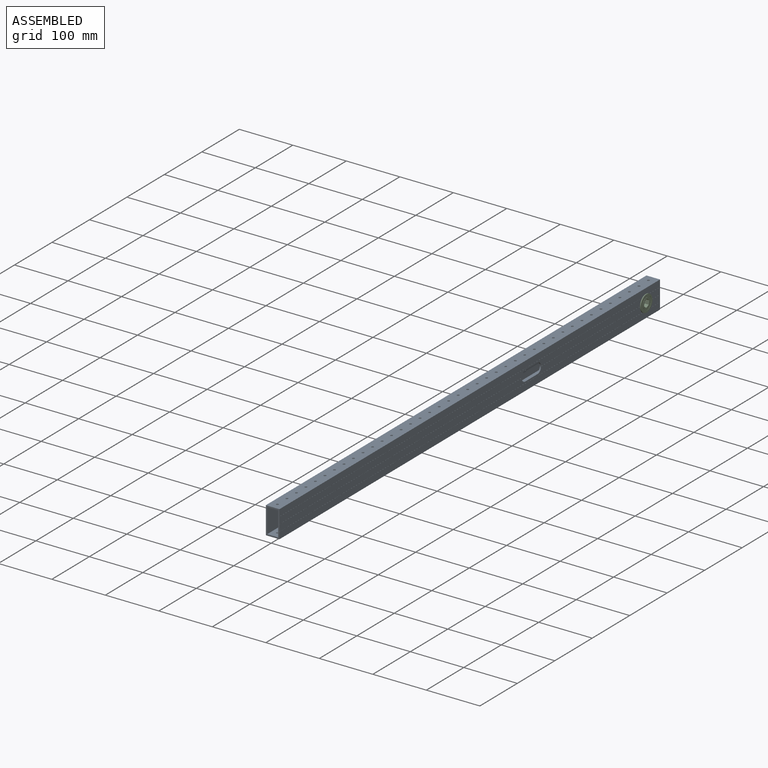
[diagram: assembled view]
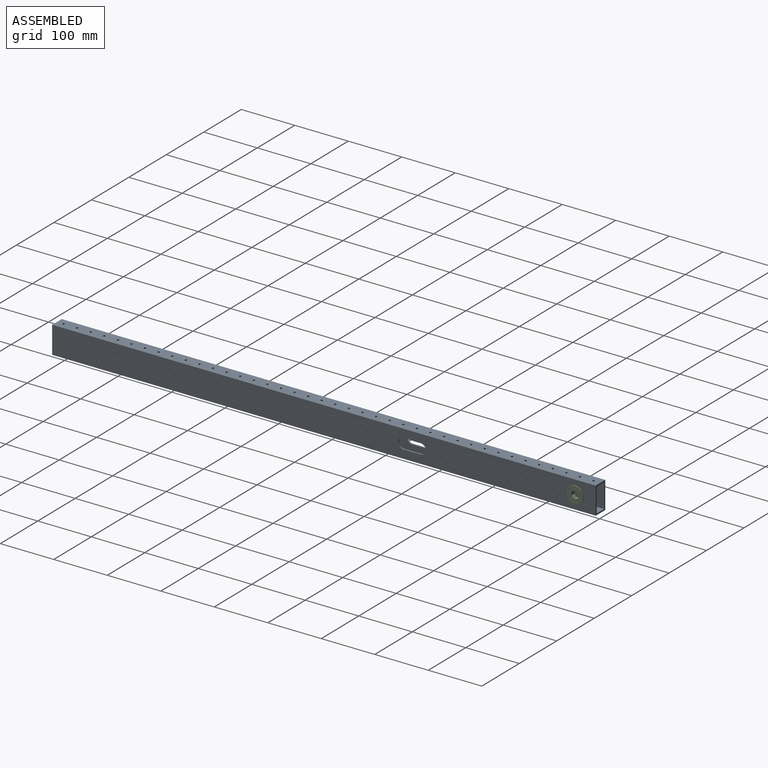
[diagram: assembled view, second angle]
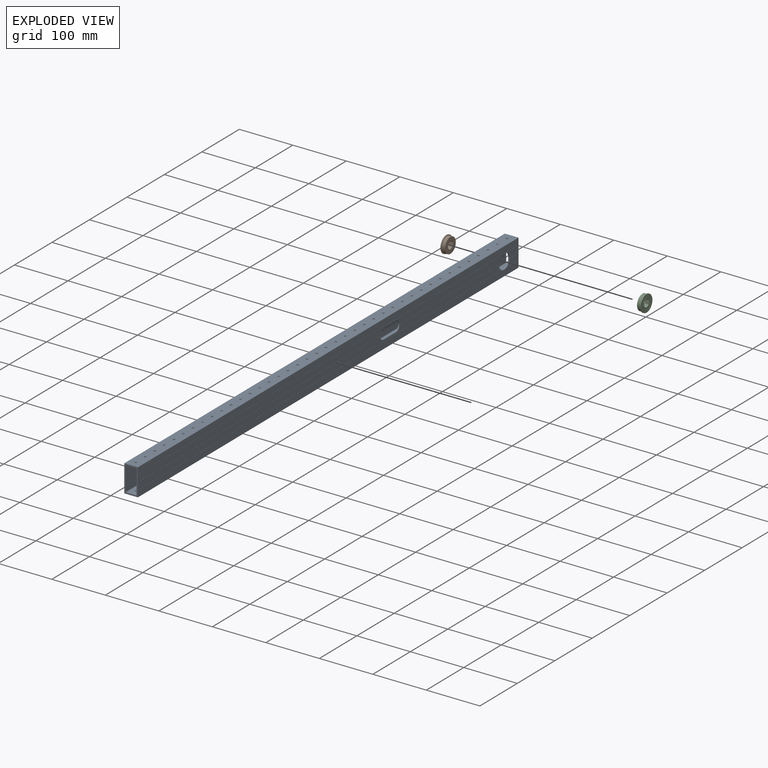
[diagram: exploded view]
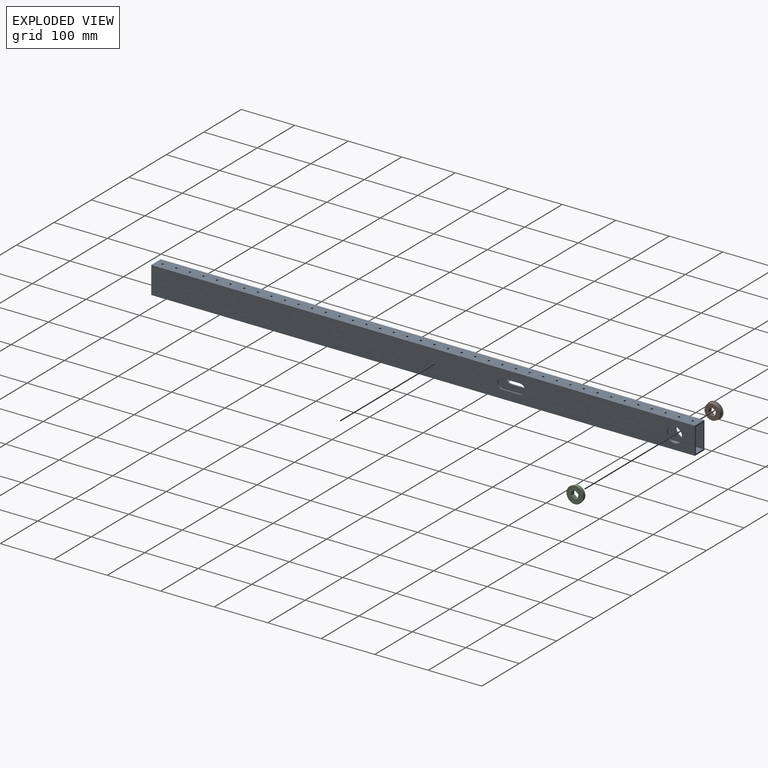
[diagram: exploded view, second angle]
ASSEMBLY  parts=3 mates=2
PART A: 304 faces, bbox 25.4x1016x50.8 mm
  f0: plane 971.21x12.55mm, normal (1,0,0), area 11668.6mm2, adj f2,f13,f15,f294,f295,f301,f302,f303
  f1: plane 971.21x12.55mm, normal (1,0,0), area 11668.6mm2, adj f3,f14,f16,f294,f295,f300,f302,f303
  f2: plane 646.76x0.08mm, normal (0.71,0,-0.71), area 69.7mm2, adj f0,f3,f295,f302
  f3: plane 646.76x0.08mm, normal (0.71,0,0.71), area 69.7mm2, adj f1,f2,f295,f302
  f4: plane 646.76x0.08mm, normal (-0.71,0,-0.71), area 69.7mm2, adj f5,f6,f295,f296
  f5: plane 646.76x0.08mm, normal (-0.71,0,0.71), area 69.7mm2, adj f4,f7,f295,f296
  f6: plane 971.21x12.55mm, normal (-1,0,0), area 11668.6mm2, adj f4,f17,f19,f293,f295,f296,f297,f298
  f7: plane 971.21x12.55mm, normal (-1,0,0), area 11668.6mm2, adj f5,f18,f34,f293,f295,f296,f297,f299
  f8: plane 1016x12.62mm, normal (-1,0,0), area 12812.8mm2, adj f24,f35,f44,f129,f293,f295
  f9: plane 1016x12.62mm, normal (1,0,0), area 12812.8mm2, adj f12,f23,f129,f210,f294,f295
  f10: plane 1016x12.62mm, normal (1,0,0), area 12812.8mm2, adj f21,f31,f40,f129,f294,f295
  f11: plane 1016x12.62mm, normal (-1,0,0), area 12812.8mm2, adj f20,f22,f129,f292,f293,f295
  f12: plane 971.51x0.08mm, normal (0.71,0,-0.71), area 104.7mm2, adj f9,f13,f294,f295
  f13: plane 971.35x0.08mm, normal (0.71,0,0.71), area 104.7mm2, adj f0,f12,f294,f295
  f14: plane 971.35x0.08mm, normal (0.71,0,-0.71), area 104.7mm2, adj f1,f31,f294,f295
  f15: plane 265.11x0.08mm, normal (0.71,0,-0.71), area 28.6mm2, adj f0,f16,f294,f303
  f16: plane 265.11x0.08mm, normal (0.71,0,0.71), area 28.6mm2, adj f1,f15,f294,f303
  f17: plane 265.11x0.08mm, normal (-0.71,0,-0.71), area 28.6mm2, adj f6,f34,f293,f297
  f18: plane 971.35x0.08mm, normal (-0.71,0,-0.71), area 104.7mm2, adj f7,f35,f293,f295
  f19: plane 971.35x0.08mm, normal (-0.71,0,0.71), area 104.7mm2, adj f6,f20,f293,f295
  f20: plane 971.51x0.08mm, normal (-0.71,0,-0.71), area 104.7mm2, adj f11,f19,f293,f295
  f21: plane 1016x12.62mm, normal (0,0,-1), area 12569.1mm2, adj f10,f33,f47,f48,f49,f50,f51,f52
  f22: plane 1016x12.62mm, normal (0,0,1), area 12569.1mm2, adj f11,f30,f86,f87,f88,f89,f90,f91
  f23: plane 1016x12.62mm, normal (0,0,1), area 12569.1mm2, adj f9,f29,f86,f87,f88,f89,f90,f91
  f24: plane 1016x12.62mm, normal (0,0,-1), area 12569.1mm2, adj f8,f32,f47,f48,f49,f50,f51,f52
  f25: plane 1016x45.72mm, normal (-1,0,0), area 44902.4mm2, adj f26,f28,f129,f294,f295,f300,f301,f302
  f26: plane 1016x20.32mm, normal (0,0,-1), area 20106.6mm2, adj f25,f27,f86,f87,f88,f89,f90,f91
  f27: plane 1016x45.72mm, normal (1,0,0), area 44902.4mm2, adj f26,f28,f129,f293,f295,f296,f297,f298
  f28: plane 1016x20.32mm, normal (0,0,1), area 20106.6mm2, adj f25,f27,f47,f48,f49,f50,f51,f52
  f29: plane 10.63x0.08mm, normal (-0.71,0,0.71), area 1.1mm2, adj f23,f30,f86,f295
  f30: plane 10.63x0.08mm, normal (0.71,0,0.71), area 1.1mm2, adj f22,f29,f86,f295
  f31: plane 971.51x0.08mm, normal (0.71,0,0.71), area 104.7mm2, adj f10,f14,f294,f295
  f32: plane 10.63x0.08mm, normal (0.71,0,-0.71), area 1.1mm2, adj f24,f33,f47,f295
  f33: plane 10.63x0.08mm, normal (-0.71,0,-0.71), area 1.1mm2, adj f21,f32,f47,f295
  f34: plane 265.11x0.08mm, normal (-0.71,0,0.71), area 28.6mm2, adj f7,f17,f293,f297
  f35: plane 971.51x0.08mm, normal (-0.71,0,0.71), area 104.7mm2, adj f8,f18,f293,f295
  f36: plane 31.41x12.55mm, normal (1,0,0), area 326.3mm2, adj f38,f41,f129,f294
  f37: plane 31.41x12.55mm, normal (1,0,0), area 326.3mm2, adj f39,f42,f129,f294
  f38: plane 31.55x0.08mm, normal (0.71,0,0.71), area 3.4mm2, adj f36,f129,f210,f294
  f39: plane 31.55x0.08mm, normal (0.71,0,-0.71), area 3.4mm2, adj f37,f40,f129,f294
  f40: plane 31.71x0.08mm, normal (0.71,0,0.71), area 3.4mm2, adj f10,f39,f129,f294
  f41: plane 23.81x0.08mm, normal (0.71,0,-0.71), area 2.6mm2, adj f36,f42,f129,f294
  f42: plane 23.81x0.08mm, normal (0.71,0,0.71), area 2.6mm2, adj f37,f41,f129,f294
  f43: plane 23.81x0.08mm, normal (-0.71,0,0.71), area 2.6mm2, adj f128,f129,f291,f293
  f44: plane 31.71x0.08mm, normal (-0.71,0,0.71), area 3.4mm2, adj f8,f45,f129,f293
  f45: plane 31.55x0.08mm, normal (-0.71,0,-0.71), area 3.4mm2, adj f44,f128,f129,f293
  f46: plane 31.55x0.08mm, normal (-0.71,0,0.71), area 3.4mm2, adj f127,f129,f292,f293
  f47: cylinder r=2.07mm len=4.14mm, axis (0,0,1), area 33mm2, adj f21,f24,f28,f32,f33,f211,f212
  f48: cylinder r=2.07mm len=4.14mm, axis (0,0,1), area 33mm2, adj f21,f24,f28,f211,f212,f213,f214
  f49: cylinder r=2.07mm len=4.14mm, axis (0,0,1), area 33mm2, adj f21,f24,f28,f213,f214,f215,f216
  f50: cylinder r=2.07mm len=4.14mm, axis (0,0,1), area 33mm2, adj f21,f24,f28,f215,f216,f217,f218
  f51: cylinder r=2.07mm len=4.14mm, axis (0,0,1), area 33mm2, adj f21,f24,f28,f217,f218,f219,f220
  f52: cylinder r=2.07mm len=4.14mm, axis (0,0,1), area 33mm2, adj f21,f24,f28,f219,f220,f221,f222
  f53: cylinder r=2.07mm len=4.14mm, axis (0,0,1), area 33mm2, adj f21,f24,f28,f221,f222,f223,f224
  f54: cylinder r=2.07mm len=4.14mm, axis (0,0,1), area 33mm2, adj f21,f24,f28,f223,f224,f225,f226
  f55: cylinder r=2.07mm len=4.14mm, axis (0,0,1), area 33mm2, adj f21,f24,f28,f225,f226,f227,f228
  f56: cylinder r=2.07mm len=4.14mm, axis (0,0,1), area 33mm2, adj f21,f24,f28,f227,f228,f229,f230
  f57: cylinder r=2.07mm len=4.14mm, axis (0,0,1), area 33mm2, adj f21,f24,f28,f229,f230,f231,f232
  f58: cylinder r=2.07mm len=4.14mm, axis (0,0,1), area 33mm2, adj f21,f24,f28,f231,f232,f233,f234
  f59: cylinder r=2.07mm len=4.14mm, axis (0,0,1), area 33mm2, adj f21,f24,f28,f233,f234,f235,f236
  f60: cylinder r=2.07mm len=4.14mm, axis (0,0,1), area 33mm2, adj f21,f24,f28,f235,f236,f237,f238
  f61: cylinder r=2.07mm len=4.14mm, axis (0,0,1), area 33mm2, adj f21,f24,f28,f237,f238,f239,f240
  f62: cylinder r=2.07mm len=4.14mm, axis (0,0,1), area 33mm2, adj f21,f24,f28,f239,f240,f241,f242
  f63: cylinder r=2.07mm len=4.14mm, axis (0,0,1), area 33mm2, adj f21,f24,f28,f241,f242,f243,f244
  f64: cylinder r=2.07mm len=4.14mm, axis (0,0,1), area 33mm2, adj f21,f24,f28,f243,f244,f245,f246
  f65: cylinder r=2.07mm len=4.14mm, axis (0,0,1), area 33mm2, adj f21,f24,f28,f245,f246,f247,f248
  f66: cylinder r=2.07mm len=4.14mm, axis (0,0,1), area 33mm2, adj f21,f24,f28,f247,f248,f249,f250
  f67: cylinder r=2.07mm len=4.14mm, axis (0,0,1), area 33mm2, adj f21,f24,f28,f249,f250,f251,f252
  f68: cylinder r=2.07mm len=4.14mm, axis (0,0,1), area 33mm2, adj f21,f24,f28,f251,f252,f253,f254
  f69: cylinder r=2.07mm len=4.14mm, axis (0,0,1), area 33mm2, adj f21,f24,f28,f253,f254,f255,f256
  f70: cylinder r=2.07mm len=4.14mm, axis (0,0,1), area 33mm2, adj f21,f24,f28,f255,f256,f257,f258
  f71: cylinder r=2.07mm len=4.14mm, axis (0,0,1), area 33mm2, adj f21,f24,f28,f257,f258,f259,f260
  f72: cylinder r=2.07mm len=4.14mm, axis (0,0,1), area 33mm2, adj f21,f24,f28,f259,f260,f261,f262
  f73: cylinder r=2.07mm len=4.14mm, axis (0,0,1), area 33mm2, adj f21,f24,f28,f261,f262,f263,f264
  f74: cylinder r=2.07mm len=4.14mm, axis (0,0,1), area 33mm2, adj f21,f24,f28,f263,f264,f265,f266
  f75: cylinder r=2.07mm len=4.14mm, axis (0,0,1), area 33mm2, adj f21,f24,f28,f265,f266,f267,f268
  f76: cylinder r=2.07mm len=4.14mm, axis (0,0,1), area 33mm2, adj f21,f24,f28,f267,f268,f269,f270
  f77: cylinder r=2.07mm len=4.14mm, axis (0,0,1), area 33mm2, adj f21,f24,f28,f269,f270,f271,f272
  f78: cylinder r=2.07mm len=4.14mm, axis (0,0,1), area 33mm2, adj f21,f24,f28,f271,f272,f273,f274
  f79: cylinder r=2.07mm len=4.14mm, axis (0,0,1), area 33mm2, adj f21,f24,f28,f273,f274,f275,f276
  f80: cylinder r=2.07mm len=4.14mm, axis (0,0,1), area 33mm2, adj f21,f24,f28,f275,f276,f277,f278
  f81: cylinder r=2.07mm len=4.14mm, axis (0,0,1), area 33mm2, adj f21,f24,f28,f277,f278,f279,f280
  f82: cylinder r=2.07mm len=4.14mm, axis (0,0,1), area 33mm2, adj f21,f24,f28,f279,f280,f281,f282
  f83: cylinder r=2.07mm len=4.14mm, axis (0,0,1), area 33mm2, adj f21,f24,f28,f281,f282,f283,f284
  f84: cylinder r=2.07mm len=4.14mm, axis (0,0,1), area 33mm2, adj f21,f24,f28,f283,f284,f285,f286
  f85: cylinder r=2.07mm len=4.14mm, axis (0,0,1), area 33mm2, adj f21,f24,f28,f285,f286,f287,f288
  f86: cylinder r=2.07mm len=4.14mm, axis (0,0,1), area 33mm2, adj f22,f23,f26,f29,f30,f130,f131
  f87: cylinder r=2.07mm len=4.14mm, axis (0,0,1), area 33mm2, adj f22,f23,f26,f130,f131,f132,f133
  f88: cylinder r=2.07mm len=4.14mm, axis (0,0,1), area 33mm2, adj f22,f23,f26,f132,f133,f134,f135
  f89: cylinder r=2.07mm len=4.14mm, axis (0,0,1), area 33mm2, adj f22,f23,f26,f134,f135,f136,f137
  f90: cylinder r=2.07mm len=4.14mm, axis (0,0,1), area 33mm2, adj f22,f23,f26,f136,f137,f138,f139
  f91: cylinder r=2.07mm len=4.14mm, axis (0,0,1), area 33mm2, adj f22,f23,f26,f138,f139,f140,f141
  f92: cylinder r=2.07mm len=4.14mm, axis (0,0,1), area 33mm2, adj f22,f23,f26,f140,f141,f142,f143
  f93: cylinder r=2.07mm len=4.14mm, axis (0,0,1), area 33mm2, adj f22,f23,f26,f142,f143,f144,f145
  f94: cylinder r=2.07mm len=4.14mm, axis (0,0,1), area 33mm2, adj f22,f23,f26,f144,f145,f146,f147
  f95: cylinder r=2.07mm len=4.14mm, axis (0,0,1), area 33mm2, adj f22,f23,f26,f146,f147,f148,f149
  f96: cylinder r=2.07mm len=4.14mm, axis (0,0,1), area 33mm2, adj f22,f23,f26,f148,f149,f150,f151
  f97: cylinder r=2.07mm len=4.14mm, axis (0,0,1), area 33mm2, adj f22,f23,f26,f150,f151,f152,f153
  f98: cylinder r=2.07mm len=4.14mm, axis (0,0,1), area 33mm2, adj f22,f23,f26,f152,f153,f154,f155
  f99: cylinder r=2.07mm len=4.14mm, axis (0,0,1), area 33mm2, adj f22,f23,f26,f154,f155,f156,f157
  f100: cylinder r=2.07mm len=4.14mm, axis (0,0,1), area 33mm2, adj f22,f23,f26,f156,f157,f158,f159
  f101: cylinder r=2.07mm len=4.14mm, axis (0,0,1), area 33mm2, adj f22,f23,f26,f158,f159,f160,f161
  f102: cylinder r=2.07mm len=4.14mm, axis (0,0,1), area 33mm2, adj f22,f23,f26,f160,f161,f162,f163
  f103: cylinder r=2.07mm len=4.14mm, axis (0,0,1), area 33mm2, adj f22,f23,f26,f162,f163,f164,f165
  f104: cylinder r=2.07mm len=4.14mm, axis (0,0,1), area 33mm2, adj f22,f23,f26,f164,f165,f166,f167
  f105: cylinder r=2.07mm len=4.14mm, axis (0,0,1), area 33mm2, adj f22,f23,f26,f166,f167,f168,f169
  f106: cylinder r=2.07mm len=4.14mm, axis (0,0,1), area 33mm2, adj f22,f23,f26,f168,f169,f170,f171
  f107: cylinder r=2.07mm len=4.14mm, axis (0,0,1), area 33mm2, adj f22,f23,f26,f170,f171,f172,f173
  f108: cylinder r=2.07mm len=4.14mm, axis (0,0,1), area 33mm2, adj f22,f23,f26,f172,f173,f174,f175
  f109: cylinder r=2.07mm len=4.14mm, axis (0,0,1), area 33mm2, adj f22,f23,f26,f174,f175,f176,f177
  f110: cylinder r=2.07mm len=4.14mm, axis (0,0,1), area 33mm2, adj f22,f23,f26,f176,f177,f178,f179
  f111: cylinder r=2.07mm len=4.14mm, axis (0,0,1), area 33mm2, adj f22,f23,f26,f178,f179,f180,f181
  f112: cylinder r=2.07mm len=4.14mm, axis (0,0,1), area 33mm2, adj f22,f23,f26,f180,f181,f182,f183
  f113: cylinder r=2.07mm len=4.14mm, axis (0,0,1), area 33mm2, adj f22,f23,f26,f182,f183,f184,f185
  f114: cylinder r=2.07mm len=4.14mm, axis (0,0,1), area 33mm2, adj f22,f23,f26,f184,f185,f186,f187
  f115: cylinder r=2.07mm len=4.14mm, axis (0,0,1), area 33mm2, adj f22,f23,f26,f186,f187,f188,f189
  f116: cylinder r=2.07mm len=4.14mm, axis (0,0,1), area 33mm2, adj f22,f23,f26,f188,f189,f190,f191
  f117: cylinder r=2.07mm len=4.14mm, axis (0,0,1), area 33mm2, adj f22,f23,f26,f190,f191,f192,f193
  f118: cylinder r=2.07mm len=4.14mm, axis (0,0,1), area 33mm2, adj f22,f23,f26,f192,f193,f194,f195
  f119: cylinder r=2.07mm len=4.14mm, axis (0,0,1), area 33mm2, adj f22,f23,f26,f194,f195,f196,f197
  f120: cylinder r=2.07mm len=4.14mm, axis (0,0,1), area 33mm2, adj f22,f23,f26,f196,f197,f198,f199
  f121: cylinder r=2.07mm len=4.14mm, axis (0,0,1), area 33mm2, adj f22,f23,f26,f198,f199,f200,f201
  f122: cylinder r=2.07mm len=4.14mm, axis (0,0,1), area 33mm2, adj f22,f23,f26,f200,f201,f202,f203
  f123: cylinder r=2.07mm len=4.14mm, axis (0,0,1), area 33mm2, adj f22,f23,f26,f202,f203,f204,f205
  f124: cylinder r=2.07mm len=4.14mm, axis (0,0,1), area 33mm2, adj f22,f23,f26,f204,f205,f206,f207
  f125: cylinder r=2.07mm len=4.14mm, axis (0,0,1), area 33mm2, adj f22,f23,f26,f206,f207,f208,f209
  f126: cylinder r=2.07mm len=4.14mm, axis (0,0,1), area 33mm2, adj f21,f24,f28,f287,f288,f289,f290
  f127: plane 31.41x12.55mm, normal (-1,0,0), area 326.3mm2, adj f46,f129,f291,f293
  f128: plane 31.41x12.55mm, normal (-1,0,0), area 326.3mm2, adj f43,f45,f129,f293
  f129: plane 50.8x25.4mm, normal (0,1,0), area 361.2mm2, adj f8,f9,f10,f11,f21,f22,f23,f24
  f130: plane 21.26x0.08mm, normal (-0.71,0,0.71), area 2.3mm2, adj f23,f86,f87,f131
  f131: plane 21.26x0.08mm, normal (0.71,0,0.71), area 2.3mm2, adj f22,f86,f87,f130
  f132: plane 21.26x0.08mm, normal (-0.71,0,0.71), area 2.3mm2, adj f23,f87,f88,f133
  f133: plane 21.26x0.08mm, normal (0.71,0,0.71), area 2.3mm2, adj f22,f87,f88,f132
  f134: plane 21.26x0.08mm, normal (-0.71,0,0.71), area 2.3mm2, adj f23,f88,f89,f135
  f135: plane 21.26x0.08mm, normal (0.71,0,0.71), area 2.3mm2, adj f22,f88,f89,f134
  f136: plane 21.26x0.08mm, normal (-0.71,0,0.71), area 2.3mm2, adj f23,f89,f90,f137
  f137: plane 21.26x0.08mm, normal (0.71,0,0.71), area 2.3mm2, adj f22,f89,f90,f136
  f138: plane 21.26x0.08mm, normal (-0.71,0,0.71), area 2.3mm2, adj f23,f90,f91,f139
  f139: plane 21.26x0.08mm, normal (0.71,0,0.71), area 2.3mm2, adj f22,f90,f91,f138
  f140: plane 21.26x0.08mm, normal (-0.71,0,0.71), area 2.3mm2, adj f23,f91,f92,f141
  f141: plane 21.26x0.08mm, normal (0.71,0,0.71), area 2.3mm2, adj f22,f91,f92,f140
  f142: plane 21.26x0.08mm, normal (-0.71,0,0.71), area 2.3mm2, adj f23,f92,f93,f143
  f143: plane 21.26x0.08mm, normal (0.71,0,0.71), area 2.3mm2, adj f22,f92,f93,f142
  f144: plane 21.26x0.08mm, normal (-0.71,0,0.71), area 2.3mm2, adj f23,f93,f94,f145
  f145: plane 21.26x0.08mm, normal (0.71,0,0.71), area 2.3mm2, adj f22,f93,f94,f144
  f146: plane 21.26x0.08mm, normal (-0.71,0,0.71), area 2.3mm2, adj f23,f94,f95,f147
  f147: plane 21.26x0.08mm, normal (0.71,0,0.71), area 2.3mm2, adj f22,f94,f95,f146
  f148: plane 21.26x0.08mm, normal (-0.71,0,0.71), area 2.3mm2, adj f23,f95,f96,f149
  f149: plane 21.26x0.08mm, normal (0.71,0,0.71), area 2.3mm2, adj f22,f95,f96,f148
  f150: plane 21.26x0.08mm, normal (-0.71,0,0.71), area 2.3mm2, adj f23,f96,f97,f151
  f151: plane 21.26x0.08mm, normal (0.71,0,0.71), area 2.3mm2, adj f22,f96,f97,f150
  f152: plane 21.26x0.08mm, normal (-0.71,0,0.71), area 2.3mm2, adj f23,f97,f98,f153
  f153: plane 21.26x0.08mm, normal (0.71,0,0.71), area 2.3mm2, adj f22,f97,f98,f152
  f154: plane 21.26x0.08mm, normal (-0.71,0,0.71), area 2.3mm2, adj f23,f98,f99,f155
  f155: plane 21.26x0.08mm, normal (0.71,0,0.71), area 2.3mm2, adj f22,f98,f99,f154
  f156: plane 21.26x0.08mm, normal (-0.71,0,0.71), area 2.3mm2, adj f23,f99,f100,f157
  f157: plane 21.26x0.08mm, normal (0.71,0,0.71), area 2.3mm2, adj f22,f99,f100,f156
  f158: plane 21.26x0.08mm, normal (-0.71,0,0.71), area 2.3mm2, adj f23,f100,f101,f159
  f159: plane 21.26x0.08mm, normal (0.71,0,0.71), area 2.3mm2, adj f22,f100,f101,f158
  f160: plane 21.26x0.08mm, normal (-0.71,0,0.71), area 2.3mm2, adj f23,f101,f102,f161
  f161: plane 21.26x0.08mm, normal (0.71,0,0.71), area 2.3mm2, adj f22,f101,f102,f160
  f162: plane 21.26x0.08mm, normal (-0.71,0,0.71), area 2.3mm2, adj f23,f102,f103,f163
  f163: plane 21.26x0.08mm, normal (0.71,0,0.71), area 2.3mm2, adj f22,f102,f103,f162
  f164: plane 21.26x0.08mm, normal (-0.71,0,0.71), area 2.3mm2, adj f23,f103,f104,f165
  f165: plane 21.26x0.08mm, normal (0.71,0,0.71), area 2.3mm2, adj f22,f103,f104,f164
  f166: plane 21.26x0.08mm, normal (-0.71,0,0.71), area 2.3mm2, adj f23,f104,f105,f167
  f167: plane 21.26x0.08mm, normal (0.71,0,0.71), area 2.3mm2, adj f22,f104,f105,f166
  f168: plane 21.26x0.08mm, normal (-0.71,0,0.71), area 2.3mm2, adj f23,f105,f106,f169
  f169: plane 21.26x0.08mm, normal (0.71,0,0.71), area 2.3mm2, adj f22,f105,f106,f168
  f170: plane 21.26x0.08mm, normal (-0.71,0,0.71), area 2.3mm2, adj f23,f106,f107,f171
  f171: plane 21.26x0.08mm, normal (0.71,0,0.71), area 2.3mm2, adj f22,f106,f107,f170
  f172: plane 21.26x0.08mm, normal (-0.71,0,0.71), area 2.3mm2, adj f23,f107,f108,f173
  f173: plane 21.26x0.08mm, normal (0.71,0,0.71), area 2.3mm2, adj f22,f107,f108,f172
  f174: plane 21.26x0.08mm, normal (-0.71,0,0.71), area 2.3mm2, adj f23,f108,f109,f175
  f175: plane 21.26x0.08mm, normal (0.71,0,0.71), area 2.3mm2, adj f22,f108,f109,f174
  f176: plane 21.26x0.08mm, normal (-0.71,0,0.71), area 2.3mm2, adj f23,f109,f110,f177
  f177: plane 21.26x0.08mm, normal (0.71,0,0.71), area 2.3mm2, adj f22,f109,f110,f176
  f178: plane 21.26x0.08mm, normal (-0.71,0,0.71), area 2.3mm2, adj f23,f110,f111,f179
  f179: plane 21.26x0.08mm, normal (0.71,0,0.71), area 2.3mm2, adj f22,f110,f111,f178
  f180: plane 21.26x0.08mm, normal (-0.71,0,0.71), area 2.3mm2, adj f23,f111,f112,f181
  f181: plane 21.26x0.08mm, normal (0.71,0,0.71), area 2.3mm2, adj f22,f111,f112,f180
  f182: plane 21.26x0.08mm, normal (-0.71,0,0.71), area 2.3mm2, adj f23,f112,f113,f183
  f183: plane 21.26x0.08mm, normal (0.71,0,0.71), area 2.3mm2, adj f22,f112,f113,f182
  f184: plane 21.26x0.08mm, normal (-0.71,0,0.71), area 2.3mm2, adj f23,f113,f114,f185
  f185: plane 21.26x0.08mm, normal (0.71,0,0.71), area 2.3mm2, adj f22,f113,f114,f184
  f186: plane 21.26x0.08mm, normal (-0.71,0,0.71), area 2.3mm2, adj f23,f114,f115,f187
  f187: plane 21.26x0.08mm, normal (0.71,0,0.71), area 2.3mm2, adj f22,f114,f115,f186
  f188: plane 21.26x0.08mm, normal (-0.71,0,0.71), area 2.3mm2, adj f23,f115,f116,f189
  f189: plane 21.26x0.08mm, normal (0.71,0,0.71), area 2.3mm2, adj f22,f115,f116,f188
  f190: plane 21.26x0.08mm, normal (-0.71,0,0.71), area 2.3mm2, adj f23,f116,f117,f191
  f191: plane 21.26x0.08mm, normal (0.71,0,0.71), area 2.3mm2, adj f22,f116,f117,f190
  f192: plane 21.26x0.08mm, normal (-0.71,0,0.71), area 2.3mm2, adj f23,f117,f118,f193
  f193: plane 21.26x0.08mm, normal (0.71,0,0.71), area 2.3mm2, adj f22,f117,f118,f192
  f194: plane 21.26x0.08mm, normal (-0.71,0,0.71), area 2.3mm2, adj f23,f118,f119,f195
  f195: plane 21.26x0.08mm, normal (0.71,0,0.71), area 2.3mm2, adj f22,f118,f119,f194
  f196: plane 21.26x0.08mm, normal (-0.71,0,0.71), area 2.3mm2, adj f23,f119,f120,f197
  f197: plane 21.26x0.08mm, normal (0.71,0,0.71), area 2.3mm2, adj f22,f119,f120,f196
  f198: plane 21.26x0.08mm, normal (-0.71,0,0.71), area 2.3mm2, adj f23,f120,f121,f199
  f199: plane 21.26x0.08mm, normal (0.71,0,0.71), area 2.3mm2, adj f22,f120,f121,f198
  f200: plane 21.26x0.08mm, normal (-0.71,0,0.71), area 2.3mm2, adj f23,f121,f122,f201
  f201: plane 21.26x0.08mm, normal (0.71,0,0.71), area 2.3mm2, adj f22,f121,f122,f200
  f202: plane 21.26x0.08mm, normal (-0.71,0,0.71), area 2.3mm2, adj f23,f122,f123,f203
  f203: plane 21.26x0.08mm, normal (0.71,0,0.71), area 2.3mm2, adj f22,f122,f123,f202
  f204: plane 21.26x0.08mm, normal (-0.71,0,0.71), area 2.3mm2, adj f23,f123,f124,f205
  f205: plane 21.26x0.08mm, normal (0.71,0,0.71), area 2.3mm2, adj f22,f123,f124,f204
  f206: plane 21.26x0.08mm, normal (-0.71,0,0.71), area 2.3mm2, adj f23,f124,f125,f207
  f207: plane 21.26x0.08mm, normal (0.71,0,0.71), area 2.3mm2, adj f22,f124,f125,f206
  f208: plane 10.63x0.08mm, normal (0.71,0,0.71), area 1.1mm2, adj f22,f125,f129,f209
  f209: plane 10.63x0.08mm, normal (-0.71,0,0.71), area 1.1mm2, adj f23,f125,f129,f208
  f210: plane 31.71x0.08mm, normal (0.71,0,-0.71), area 3.4mm2, adj f9,f38,f129,f294
  f211: plane 21.26x0.08mm, normal (0.71,0,-0.71), area 2.3mm2, adj f24,f47,f48,f212
  f212: plane 21.26x0.08mm, normal (-0.71,0,-0.71), area 2.3mm2, adj f21,f47,f48,f211
  f213: plane 21.26x0.08mm, normal (0.71,0,-0.71), area 2.3mm2, adj f24,f48,f49,f214
  f214: plane 21.26x0.08mm, normal (-0.71,0,-0.71), area 2.3mm2, adj f21,f48,f49,f213
  f215: plane 21.26x0.08mm, normal (0.71,0,-0.71), area 2.3mm2, adj f24,f49,f50,f216
  f216: plane 21.26x0.08mm, normal (-0.71,0,-0.71), area 2.3mm2, adj f21,f49,f50,f215
  f217: plane 21.26x0.08mm, normal (0.71,0,-0.71), area 2.3mm2, adj f24,f50,f51,f218
  f218: plane 21.26x0.08mm, normal (-0.71,0,-0.71), area 2.3mm2, adj f21,f50,f51,f217
  f219: plane 21.26x0.08mm, normal (0.71,0,-0.71), area 2.3mm2, adj f24,f51,f52,f220
  f220: plane 21.26x0.08mm, normal (-0.71,0,-0.71), area 2.3mm2, adj f21,f51,f52,f219
  f221: plane 21.26x0.08mm, normal (0.71,0,-0.71), area 2.3mm2, adj f24,f52,f53,f222
  f222: plane 21.26x0.08mm, normal (-0.71,0,-0.71), area 2.3mm2, adj f21,f52,f53,f221
  f223: plane 21.26x0.08mm, normal (0.71,0,-0.71), area 2.3mm2, adj f24,f53,f54,f224
  f224: plane 21.26x0.08mm, normal (-0.71,0,-0.71), area 2.3mm2, adj f21,f53,f54,f223
  f225: plane 21.26x0.08mm, normal (0.71,0,-0.71), area 2.3mm2, adj f24,f54,f55,f226
  f226: plane 21.26x0.08mm, normal (-0.71,0,-0.71), area 2.3mm2, adj f21,f54,f55,f225
  f227: plane 21.26x0.08mm, normal (0.71,0,-0.71), area 2.3mm2, adj f24,f55,f56,f228
  f228: plane 21.26x0.08mm, normal (-0.71,0,-0.71), area 2.3mm2, adj f21,f55,f56,f227
  f229: plane 21.26x0.08mm, normal (0.71,0,-0.71), area 2.3mm2, adj f24,f56,f57,f230
  f230: plane 21.26x0.08mm, normal (-0.71,0,-0.71), area 2.3mm2, adj f21,f56,f57,f229
  f231: plane 21.26x0.08mm, normal (0.71,0,-0.71), area 2.3mm2, adj f24,f57,f58,f232
  f232: plane 21.26x0.08mm, normal (-0.71,0,-0.71), area 2.3mm2, adj f21,f57,f58,f231
  f233: plane 21.26x0.08mm, normal (0.71,0,-0.71), area 2.3mm2, adj f24,f58,f59,f234
  f234: plane 21.26x0.08mm, normal (-0.71,0,-0.71), area 2.3mm2, adj f21,f58,f59,f233
  f235: plane 21.26x0.08mm, normal (0.71,0,-0.71), area 2.3mm2, adj f24,f59,f60,f236
  f236: plane 21.26x0.08mm, normal (-0.71,0,-0.71), area 2.3mm2, adj f21,f59,f60,f235
  f237: plane 21.26x0.08mm, normal (0.71,0,-0.71), area 2.3mm2, adj f24,f60,f61,f238
  f238: plane 21.26x0.08mm, normal (-0.71,0,-0.71), area 2.3mm2, adj f21,f60,f61,f237
  f239: plane 21.26x0.08mm, normal (0.71,0,-0.71), area 2.3mm2, adj f24,f61,f62,f240
  f240: plane 21.26x0.08mm, normal (-0.71,0,-0.71), area 2.3mm2, adj f21,f61,f62,f239
  f241: plane 21.26x0.08mm, normal (0.71,0,-0.71), area 2.3mm2, adj f24,f62,f63,f242
  f242: plane 21.26x0.08mm, normal (-0.71,0,-0.71), area 2.3mm2, adj f21,f62,f63,f241
  f243: plane 21.26x0.08mm, normal (0.71,0,-0.71), area 2.3mm2, adj f24,f63,f64,f244
  f244: plane 21.26x0.08mm, normal (-0.71,0,-0.71), area 2.3mm2, adj f21,f63,f64,f243
  f245: plane 21.26x0.08mm, normal (0.71,0,-0.71), area 2.3mm2, adj f24,f64,f65,f246
  f246: plane 21.26x0.08mm, normal (-0.71,0,-0.71), area 2.3mm2, adj f21,f64,f65,f245
  f247: plane 21.26x0.08mm, normal (0.71,0,-0.71), area 2.3mm2, adj f24,f65,f66,f248
  f248: plane 21.26x0.08mm, normal (-0.71,0,-0.71), area 2.3mm2, adj f21,f65,f66,f247
  f249: plane 21.26x0.08mm, normal (0.71,0,-0.71), area 2.3mm2, adj f24,f66,f67,f250
  f250: plane 21.26x0.08mm, normal (-0.71,0,-0.71), area 2.3mm2, adj f21,f66,f67,f249
  f251: plane 21.26x0.08mm, normal (0.71,0,-0.71), area 2.3mm2, adj f24,f67,f68,f252
  f252: plane 21.26x0.08mm, normal (-0.71,0,-0.71), area 2.3mm2, adj f21,f67,f68,f251
  f253: plane 21.26x0.08mm, normal (0.71,0,-0.71), area 2.3mm2, adj f24,f68,f69,f254
  f254: plane 21.26x0.08mm, normal (-0.71,0,-0.71), area 2.3mm2, adj f21,f68,f69,f253
  f255: plane 21.26x0.08mm, normal (0.71,0,-0.71), area 2.3mm2, adj f24,f69,f70,f256
  f256: plane 21.26x0.08mm, normal (-0.71,0,-0.71), area 2.3mm2, adj f21,f69,f70,f255
  f257: plane 21.26x0.08mm, normal (0.71,0,-0.71), area 2.3mm2, adj f24,f70,f71,f258
  f258: plane 21.26x0.08mm, normal (-0.71,0,-0.71), area 2.3mm2, adj f21,f70,f71,f257
  f259: plane 21.26x0.08mm, normal (0.71,0,-0.71), area 2.3mm2, adj f24,f71,f72,f260
  f260: plane 21.26x0.08mm, normal (-0.71,0,-0.71), area 2.3mm2, adj f21,f71,f72,f259
  f261: plane 21.26x0.08mm, normal (0.71,0,-0.71), area 2.3mm2, adj f24,f72,f73,f262
  f262: plane 21.26x0.08mm, normal (-0.71,0,-0.71), area 2.3mm2, adj f21,f72,f73,f261
  f263: plane 21.26x0.08mm, normal (0.71,0,-0.71), area 2.3mm2, adj f24,f73,f74,f264
  f264: plane 21.26x0.08mm, normal (-0.71,0,-0.71), area 2.3mm2, adj f21,f73,f74,f263
  f265: plane 21.26x0.08mm, normal (0.71,0,-0.71), area 2.3mm2, adj f24,f74,f75,f266
  f266: plane 21.26x0.08mm, normal (-0.71,0,-0.71), area 2.3mm2, adj f21,f74,f75,f265
  f267: plane 21.26x0.08mm, normal (0.71,0,-0.71), area 2.3mm2, adj f24,f75,f76,f268
  f268: plane 21.26x0.08mm, normal (-0.71,0,-0.71), area 2.3mm2, adj f21,f75,f76,f267
  f269: plane 21.26x0.08mm, normal (0.71,0,-0.71), area 2.3mm2, adj f24,f76,f77,f270
  f270: plane 21.26x0.08mm, normal (-0.71,0,-0.71), area 2.3mm2, adj f21,f76,f77,f269
  f271: plane 21.26x0.08mm, normal (0.71,0,-0.71), area 2.3mm2, adj f24,f77,f78,f272
  f272: plane 21.26x0.08mm, normal (-0.71,0,-0.71), area 2.3mm2, adj f21,f77,f78,f271
  f273: plane 21.26x0.08mm, normal (0.71,0,-0.71), area 2.3mm2, adj f24,f78,f79,f274
  f274: plane 21.26x0.08mm, normal (-0.71,0,-0.71), area 2.3mm2, adj f21,f78,f79,f273
  f275: plane 21.26x0.08mm, normal (0.71,0,-0.71), area 2.3mm2, adj f24,f79,f80,f276
  f276: plane 21.26x0.08mm, normal (-0.71,0,-0.71), area 2.3mm2, adj f21,f79,f80,f275
  f277: plane 21.26x0.08mm, normal (0.71,0,-0.71), area 2.3mm2, adj f24,f80,f81,f278
  f278: plane 21.26x0.08mm, normal (-0.71,0,-0.71), area 2.3mm2, adj f21,f80,f81,f277
  f279: plane 21.26x0.08mm, normal (0.71,0,-0.71), area 2.3mm2, adj f24,f81,f82,f280
  f280: plane 21.26x0.08mm, normal (-0.71,0,-0.71), area 2.3mm2, adj f21,f81,f82,f279
  f281: plane 21.26x0.08mm, normal (0.71,0,-0.71), area 2.3mm2, adj f24,f82,f83,f282
  f282: plane 21.26x0.08mm, normal (-0.71,0,-0.71), area 2.3mm2, adj f21,f82,f83,f281
  f283: plane 21.26x0.08mm, normal (0.71,0,-0.71), area 2.3mm2, adj f24,f83,f84,f284
  f284: plane 21.26x0.08mm, normal (-0.71,0,-0.71), area 2.3mm2, adj f21,f83,f84,f283
  f285: plane 21.26x0.08mm, normal (0.71,0,-0.71), area 2.3mm2, adj f24,f84,f85,f286
  f286: plane 21.26x0.08mm, normal (-0.71,0,-0.71), area 2.3mm2, adj f21,f84,f85,f285
  f287: plane 21.26x0.08mm, normal (0.71,0,-0.71), area 2.3mm2, adj f24,f85,f126,f288
  f288: plane 21.26x0.08mm, normal (-0.71,0,-0.71), area 2.3mm2, adj f21,f85,f126,f287
  f289: plane 10.63x0.08mm, normal (-0.71,0,-0.71), area 1.1mm2, adj f21,f126,f129,f290
  f290: plane 10.63x0.08mm, normal (0.71,0,-0.71), area 1.1mm2, adj f24,f126,f129,f289
  f291: plane 23.81x0.08mm, normal (-0.71,0,-0.71), area 2.6mm2, adj f43,f127,f129,f293
  f292: plane 31.71x0.08mm, normal (-0.71,0,-0.71), area 3.4mm2, adj f11,f46,f129,f293
  f293: cylinder r=14.29mm len=28.58mm, axis (1,0,0), area 228mm2, adj f6,f7,f8,f11,f17,f18,f19,f20
  f294: cylinder r=14.29mm len=28.58mm, axis (1,0,0), area 228mm2, adj f0,f1,f9,f10,f12,f13,f14,f15
  f295: plane 50.8x25.4mm, normal (0,-1,0), area 361.2mm2, adj f0,f1,f2,f3,f4,f5,f6,f7
  f296: cylinder r=9.53mm len=19.05mm, axis (1,0,0), area 76mm2, adj f4,f5,f6,f7,f27,f298,f299
  f297: cylinder r=9.53mm len=19.05mm, axis (1,0,0), area 76mm2, adj f6,f7,f17,f27,f34,f298,f299
  f298: plane 32.7x2.54mm, normal (0,0,-1), area 83mm2, adj f6,f27,f296,f297
  f299: plane 32.7x2.54mm, normal (0,0,1), area 83mm2, adj f7,f27,f296,f297
  f300: plane 32.7x2.54mm, normal (0,0,1), area 83mm2, adj f1,f25,f302,f303
  f301: plane 32.7x2.54mm, normal (0,0,-1), area 83mm2, adj f0,f25,f302,f303
  f302: cylinder r=9.53mm len=19.05mm, axis (1,0,0), area 76mm2, adj f0,f1,f2,f3,f25,f300,f301
  f303: cylinder r=9.53mm len=19.05mm, axis (1,0,0), area 76mm2, adj f0,f1,f15,f16,f25,f300,f301
PART B: 15 faces, bbox 31.1x31.1x7.9 mm
  f0: cylinder r=12.7mm len=25.4mm, axis (0,0,1), area 30.4mm2, adj f7,f8
  f1: cylinder r=15.56mm len=31.12mm, axis (0,0,1), area 155.2mm2, adj f6,f7
  f2: cylinder r=14.27mm len=28.55mm, axis (0,0,1), area 569.5mm2, adj f5,f6
  f3: cylinder r=9.53mm len=19.05mm, axis (0,0,1), area 22.8mm2, adj f4,f8
  f4: plane 19.05x19.05mm, normal (0,0,1), area 144.9mm2, adj f3,f9,f10,f11,f12,f13,f14
  f5: plane 28.55x28.55mm, normal (0,0,-1), area 500mm2, adj f2,f9,f10,f11,f12,f13,f14
  f6: plane 31.12x31.12mm, normal (0,0,-1), area 120.2mm2, adj f1,f2
  f7: plane 31.12x31.12mm, normal (0,0,1), area 253.7mm2, adj f0,f1
  f8: plane 25.4x25.4mm, normal (0,0,1), area 221.7mm2, adj f0,f3
  f9: plane 7.94x6.36mm, normal (-0.87,-0.5,0), area 58.3mm2, adj f4,f5,f10,f14
  f10: plane 7.94x6.36mm, normal (-0.87,0.5,0), area 58.3mm2, adj f4,f5,f9,f11
  f11: plane 7.94x7.34mm, normal (0,1,0), area 58.3mm2, adj f4,f5,f10,f12
  f12: plane 7.94x6.36mm, normal (0.87,0.5,0), area 58.3mm2, adj f4,f5,f11,f13
  f13: plane 7.94x6.36mm, normal (0.87,-0.5,0), area 58.3mm2, adj f4,f5,f12,f14
  f14: plane 7.94x7.34mm, normal (0,-1,0), area 58.3mm2, adj f4,f5,f9,f13
PART C: same geometry as B
PLACE A t=(8.44,58.44,-9.42)mm fixed
PLACE B rot(axis=(0.41,-0.82,-0.41),101.3deg) t=(2.09,769.64,-9.42)mm
PLACE C rot(axis=(-0.07,0.99,-0.07),90.3deg) t=(14.79,769.64,-9.42)mm
MATE revolute B.f0 <-> A.f293  axis (1,0,0) through (-4.26,769.64,-9.42)mm
MATE revolute C.f0 <-> A.f293  axis (-1,0,0) through (21.14,769.64,-9.42)mm
